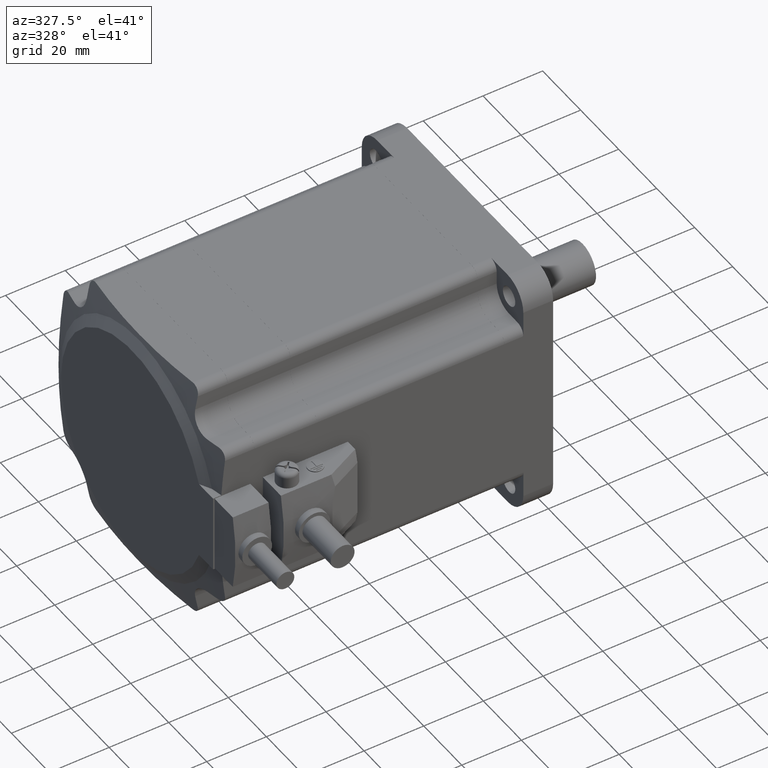
[diagram: clean part render]
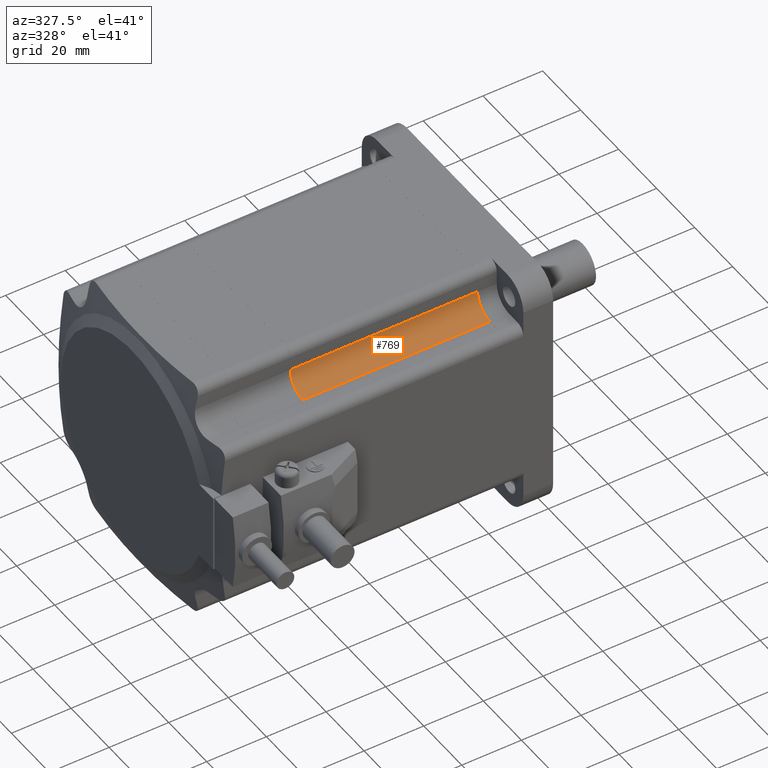
[diagram: same view with one face highlighted and labeled with its STEP entity id]
A machine part, auxiliary view. The second image highlights one B-rep face of the part: STEP entity #769.
In plain terms, the highlighted cylindrical surface (edge-blend (fillet) strip) has radius 6.5 mm, axis along (1, -0, -0).
Its self-contained STEP definition (entity closure, byte-faithful):
#769 = ADVANCED_FACE( '', ( #1585 ), #1586, .F. );
#1585 = FACE_OUTER_BOUND( '', #2413, .T. );
#1586 = CYLINDRICAL_SURFACE( '', #2414, 6.50000000000000 );
#2413 = EDGE_LOOP( '', ( #4722, #4723, #4724, #4725 ) );
#2414 = AXIS2_PLACEMENT_3D( '', #4726, #4727, #4728 );
#4722 = ORIENTED_EDGE( '', *, *, #5866, .F. );
#4723 = ORIENTED_EDGE( '', *, *, #5823, .F. );
#4724 = ORIENTED_EDGE( '', *, *, #5101, .T. );
#4725 = ORIENTED_EDGE( '', *, *, #5667, .T. );
#4726 = CARTESIAN_POINT( '', ( -9.99999999999999, -35.0000000000000, 35.0000000000000 ) );
#4727 = DIRECTION( '', ( 1.00000000000000, -0.000000000000000, -0.000000000000000 ) );
#4728 = DIRECTION( '', ( 0.000000000000000, 0.000000000000000, 1.00000000000000 ) );
#5101 = EDGE_CURVE( '', #6160, #6202, #6204, .T. );
#5667 = EDGE_CURVE( '', #6202, #7064, #7066, .T. );
#5823 = EDGE_CURVE( '', #6160, #7256, #7257, .T. );
#5866 = EDGE_CURVE( '', #7256, #7064, #7304, .T. );
#6160 = VERTEX_POINT( '', #7729 );
#6202 = VERTEX_POINT( '', #7782 );
#6204 = CIRCLE( '', #7785, 6.50000000000000 );
#7064 = VERTEX_POINT( '', #9210 );
#7066 = LINE( '', #9213, #9214 );
#7256 = VERTEX_POINT( '', #9480 );
#7257 = LINE( '', #9481, #9482 );
#7304 = CIRCLE( '', #9616, 6.50000000000000 );
#7729 = CARTESIAN_POINT( '', ( -16.4000000000000, -35.0000000000000, 28.5000000000000 ) );
#7782 = CARTESIAN_POINT( '', ( -16.4000000000000, -28.5000000000000, 35.0000000000000 ) );
#7785 = AXIS2_PLACEMENT_3D( '', #9877, #9878, #9879 );
#9210 = CARTESIAN_POINT( '', ( -79.1900000000000, -28.5000000000000, 35.0000000000000 ) );
#9213 = CARTESIAN_POINT( '', ( -9.99999999999999, -28.5000000000000, 35.0000000000000 ) );
#9214 = VECTOR( '', #10558, 1000.00000000000 );
#9480 = CARTESIAN_POINT( '', ( -79.1900000000000, -35.0000000000000, 28.5000000000000 ) );
#9481 = CARTESIAN_POINT( '', ( -9.99999999999999, -35.0000000000000, 28.5000000000000 ) );
#9482 = VECTOR( '', #10738, 1000.00000000000 );
#9616 = AXIS2_PLACEMENT_3D( '', #10764, #10765, #10766 );
#9877 = CARTESIAN_POINT( '', ( -16.4000000000000, -35.0000000000000, 35.0000000000000 ) );
#9878 = DIRECTION( '', ( 1.00000000000000, 0.000000000000000, 0.000000000000000 ) );
#9879 = DIRECTION( '', ( 0.000000000000000, 0.000000000000000, -1.00000000000000 ) );
#10558 = DIRECTION( '', ( -1.00000000000000, -0.000000000000000, -0.000000000000000 ) );
#10738 = DIRECTION( '', ( -1.00000000000000, -0.000000000000000, -0.000000000000000 ) );
#10764 = CARTESIAN_POINT( '', ( -79.1900000000000, -35.0000000000000, 35.0000000000000 ) );
#10765 = DIRECTION( '', ( 1.00000000000000, 0.000000000000000, 0.000000000000000 ) );
#10766 = DIRECTION( '', ( 0.000000000000000, 0.000000000000000, -1.00000000000000 ) );